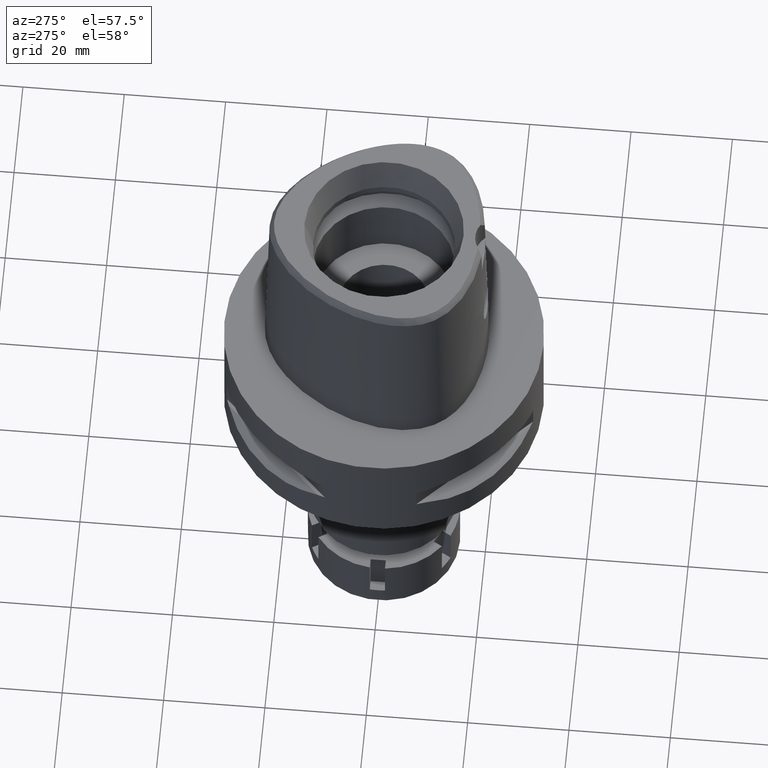
[diagram: clean part render]
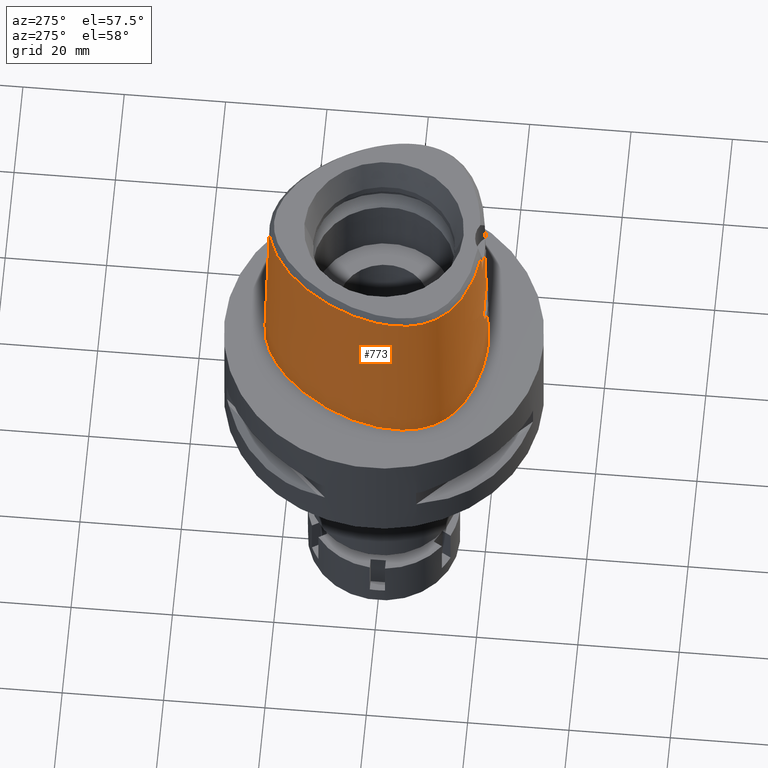
[diagram: same view with one face highlighted and labeled with its STEP entity id]
A machine part, auxiliary view. The second image highlights one B-rep face of the part: STEP entity #773.
In plain terms, the highlighted face is a freeform B-spline surface patch.
Its self-contained STEP definition (entity closure, byte-faithful):
#11 = CARTESIAN_POINT ( 'NONE',  ( -1.022365109425869667, -20.17471965582462801, 19.42121493659535503 ) ) ;
#21 = EDGE_CURVE ( 'NONE', #5096, #2215, #3666, .T. ) ;
#37 = CARTESIAN_POINT ( 'NONE',  ( -1.517161473151139583, -20.16080877568152019, 19.25511071981175348 ) ) ;
#38 = EDGE_CURVE ( 'NONE', #4726, #525, #5244, .T. ) ;
#125 = VERTEX_POINT ( 'NONE', #2881 ) ;
#173 = CARTESIAN_POINT ( 'NONE',  ( -4.047647783303075286, -20.04912830845453797, 15.64167056050822247 ) ) ;
#188 = CARTESIAN_POINT ( 'NONE',  ( 0.0000000000000000000, -20.18628283968999781, 19.55000000000000071 ) ) ;
#196 = CARTESIAN_POINT ( 'NONE',  ( -17.25769840665999766, 9.963736472051998305, 37.25232557796999799 ) ) ;
#199 = CARTESIAN_POINT ( 'NONE',  ( -3.836464923252963732, -20.10950437770303267, 14.19903046587717199 ) ) ;
#226 = CARTESIAN_POINT ( 'NONE',  ( -20.65879046315000167, -10.48283618578000009, 11.93048335503999979 ) ) ;
#228 = CARTESIAN_POINT ( 'NONE',  ( -3.088949651948550645, -20.08579362655097711, 18.13906926423142707 ) ) ;
#245 = ORIENTED_EDGE ( 'NONE', *, *, #4448, .T. ) ;
#254 = CARTESIAN_POINT ( 'NONE',  ( -21.31039815168000118, -4.105938498081999732, 37.25232557796999799 ) ) ;
#256 = CARTESIAN_POINT ( 'NONE',  ( -1.537537617581739013, -20.16012734688905184, 19.24679635489585294 ) ) ;
#278 = CARTESIAN_POINT ( 'NONE',  ( 6.589893037108998874E-11, 23.47499999998000320, 1.563934167354999746E-13 ) ) ;
#281 = CARTESIAN_POINT ( 'NONE',  ( -20.76670355095999909, 4.663413654650000240, -0.7304377564306999693 ) ) ;
#283 = CARTESIAN_POINT ( 'NONE',  ( -4.049380509949498830, -20.05052727726762996, 15.57772136793791695 ) ) ;
#303 = CARTESIAN_POINT ( 'NONE',  ( -18.12052898442000171, -13.74516022082999989, 24.59140446649999845 ) ) ;
#355 = CARTESIAN_POINT ( 'NONE',  ( -1.886862292332999846, -20.71358860104000144, -0.7304377564306999693 ) ) ;
#371 = CARTESIAN_POINT ( 'NONE',  ( -0.7901461696978930860, 22.56201478746269018, 36.52186244848001451 ) ) ;
#420 = CARTESIAN_POINT ( 'NONE',  ( -2.376843896520162591, 22.39422508473871432, 36.52186244848001451 ) ) ;
#459 = B_SPLINE_CURVE_WITH_KNOTS ( 'NONE', 3,
 ( #874, #2049, #3408, #1646, #2996, #4242, #2079, #5447, #984, #3924, #3329, #1211, #2469, #4342, #2891, #4981, #3819, #550, #2916, #1282, #420, #371, #5006 ),
 .UNSPECIFIED., .F., .F.,
 ( 4, 1, 1, 1, 1, 1, 1, 1, 1, 1, 1, 1, 1, 1, 1, 1, 1, 1, 1, 1, 4 ),
 ( 0.0000000000000000000, 0.03580973941716773801, 0.1234633994701237469, 0.1672902294965492032, 0.2111170595229746594, 0.2549438895495053647, 0.2768573045626129270, 0.2987707195758255718, 0.3206841345891434658, 0.3425975496022510280, 0.3864243796287815669, 0.4302512096551018295, 0.4740780396816324793, 0.5617316997344834473, 0.6493853597874393868, 0.7370390198402902993, 0.8246926798930360736, 0.8685195099195666124, 0.9123463399460025602, 0.9561731699724385081, 1.000000000000000000 ),
 .UNSPECIFIED. ) ;
#471 = EDGE_LOOP ( 'NONE', ( #3271, #1080, #3884, #3812, #4733, #245, #1954, #1796 ) ) ;
#525 = VERTEX_POINT ( 'NONE', #3289 ) ;
#550 = CARTESIAN_POINT ( 'NONE',  ( -10.15538788052530705, 18.47129535093771935, 36.52186244848001451 ) ) ;
#582 = CARTESIAN_POINT ( 'NONE',  ( -2.851861598615923032, -20.09934730900324240, 18.37566093960744595 ) ) ;
#613 = CARTESIAN_POINT ( 'NONE',  ( -4.036689213118804354, -20.04559770559082921, 15.83444366183588059 ) ) ;
#640 = CARTESIAN_POINT ( 'NONE',  ( -21.26836739854000058, -8.910752240484999476, 11.93048335503999979 ) ) ;
#642 = CARTESIAN_POINT ( 'NONE',  ( -3.772617383112289779, -20.12080038811392058, 14.02677193602148975 ) ) ;
#645 = CARTESIAN_POINT ( 'NONE',  ( -14.67337963994967964, -17.21410155503892625, 3.423926579000820258E-07 ) ) ;
#668 = CARTESIAN_POINT ( 'NONE',  ( -14.68244497214999988, -17.23001773197000119, -0.7304377564306999693 ) ) ;
#670 = CARTESIAN_POINT ( 'NONE',  ( -3.727468063551945487, -20.04882030316939634, 17.08383202250638178 ) ) ;
#697 = CARTESIAN_POINT ( 'NONE',  ( -5.105252916821000575, 22.54305024418999892, -0.7304377564306999693 ) ) ;
#700 = CARTESIAN_POINT ( 'NONE',  ( -3.701411870351474231, -20.05012129341275795, 17.14416660342578780 ) ) ;
#704 = CARTESIAN_POINT ( 'NONE',  ( -18.56841064519229789, -14.16937987690424983, 3.423926579000820258E-07 ) ) ;
#725 = CARTESIAN_POINT ( 'NONE',  ( -18.35112152585000089, -13.96357034382999984, 11.93048335503999979 ) ) ;
#747 = CARTESIAN_POINT ( 'NONE',  ( -6.232237572390999958, -19.68961173059000203, 24.59140446649999845 ) ) ;
#773 = ADVANCED_FACE ( 'NONE', ( #3537 ), #5024, .T. ) ;
#831 = CARTESIAN_POINT ( 'NONE',  ( -1.680950213402043758, -20.33952377252902011, 11.81519902098117036 ) ) ;
#856 = CARTESIAN_POINT ( 'NONE',  ( 0.6718639820156999676, -20.05378883490000064, 24.59140446649999845 ) ) ;
#874 = CARTESIAN_POINT ( 'NONE',  ( -3.637738201363999835, -19.56971413236999879, 36.52186244848000030 ) ) ;
#900 = CARTESIAN_POINT ( 'NONE',  ( -1.661817726879000115E-12, -20.38876923348000147, 11.44999999999999929 ) ) ;
#970 = VECTOR ( 'NONE', #4516, 1000.000000000000114 ) ;
#984 = CARTESIAN_POINT ( 'NONE',  ( -19.55745547456124456, -11.29150218116027027, 36.52186244848001451 ) ) ;
#995 = CARTESIAN_POINT ( 'NONE',  ( -3.704239276368590961, -19.64128040965313460, 33.37395414949332917 ) ) ;
#1010 = CARTESIAN_POINT ( 'NONE',  ( -3.762866558989816035, -20.12247609577278595, 14.00219724669837440 ) ) ;
#1040 = CARTESIAN_POINT ( 'NONE',  ( 0.6850314066075999797, 22.83959042086999958, 24.59140446649999845 ) ) ;
#1043 = CARTESIAN_POINT ( 'NONE',  ( -2.842819473918802409, -20.09986155660018881, 18.38460012063233862 ) ) ;
#1045 = CARTESIAN_POINT ( 'NONE',  ( -22.05732873470831379, -6.847636717526464523, 3.423926579000820258E-07 ) ) ;
#1056 = CARTESIAN_POINT ( 'NONE',  ( -3.637738201363999835, -19.56971413236999879, 36.52186244848000030 ) ) ;
#1069 = CARTESIAN_POINT ( 'NONE',  ( -21.62788395688999898, -4.104079498733999465, 24.59140446649999845 ) ) ;
#1071 = CARTESIAN_POINT ( 'NONE',  ( -3.925545876650333721, -20.09219437664471641, 14.49437688004419655 ) ) ;
#1075 = CARTESIAN_POINT ( 'NONE',  ( -2.564517725197732911, 23.29328124157386171, 3.423926579000820258E-07 ) ) ;
#1080 = ORIENTED_EDGE ( 'NONE', *, *, #4521, .F. ) ;
#1097 = CARTESIAN_POINT ( 'NONE',  ( -21.36961496507000291, -0.3886497983659999433, 24.59140446649999845 ) ) ;
#1099 = CARTESIAN_POINT ( 'NONE',  ( -2.829262209631099534, -20.10063058960543358, 18.39793988736884600 ) ) ;
#1121 = CARTESIAN_POINT ( 'NONE',  ( -10.34823234085999921, 18.70095494701000050, 24.59140446649999845 ) ) ;
#1123 = CARTESIAN_POINT ( 'NONE',  ( -2.886359020766678718, -20.23990313644716821, 12.65895641127606730 ) ) ;
#1128 = CARTESIAN_POINT ( 'NONE',  ( -6.341471017690654577, -20.29812499153080907, 3.423926579000820258E-07 ) ) ;
#1147 = CARTESIAN_POINT ( 'NONE',  ( -21.13154870326999912, -6.714587051255999306, 37.25232557796999799 ) ) ;
#1167 = CARTESIAN_POINT ( 'NONE',  ( -7.259695406138000351, 20.78233559289999732, 24.59140446649999845 ) ) ;
#1211 = CARTESIAN_POINT ( 'NONE',  ( -21.14970188363446724, -6.717195958887569596, 36.52186244848001451 ) ) ;
#1221 = CARTESIAN_POINT ( 'NONE',  ( -1.641547885477804503, -20.34184452622899641, 11.79740194305472833 ) ) ;
#1256 = DIRECTION ( 'NONE',  ( -1.018537051600977918E-12, -0.02499051295360945474, -0.9996876883618780463 ) ) ;
#1282 = CARTESIAN_POINT ( 'NONE',  ( -4.757642277159164657, 21.67478330407714537, 36.52186244848001451 ) ) ;
#1354 = CARTESIAN_POINT ( 'NONE',  ( 0.7234356452484000943, 23.47140592861000030, -0.7304377564306999693 ) ) ;
#1360 = VERTEX_POINT ( 'NONE', #900 ) ;
#1388 = CARTESIAN_POINT ( 'NONE',  ( -0.5985508169113999966, 23.20171274679999840, 11.93048335503999979 ) ) ;
#1416 = CARTESIAN_POINT ( 'NONE',  ( -0.5657070251571000297, 22.56734893796999941, 37.25232557796999799 ) ) ;
#1418 = CARTESIAN_POINT ( 'NONE',  ( -3.624916899577419471, -20.05423358433256453, 17.30718645647710829 ) ) ;
#1443 = CARTESIAN_POINT ( 'NONE',  ( -2.797674746443008953, -20.10240863121991239, 18.42858565186585551 ) ) ;
#1447 = CARTESIAN_POINT ( 'NONE',  ( -16.95889172062087624, -15.67838866511357665, 3.423926579000820258E-07 ) ) ;
#1475 = CARTESIAN_POINT ( 'NONE',  ( -7.420053123634000158, 21.05635742872999927, 11.93048335503999979 ) ) ;
#1478 = CARTESIAN_POINT ( 'NONE',  ( -2.575331093196957521, -20.11438870429707748, 18.62711872177947825 ) ) ;
#1479 = CARTESIAN_POINT ( 'NONE',  ( -1.251533273950117264, -19.88005341379780333, 31.80000012753028571 ) ) ;
#1480 = CARTESIAN_POINT ( 'NONE',  ( -14.21104791870999939, -16.40237691951999821, 37.25232557796999799 ) ) ;
#1506 = CARTESIAN_POINT ( 'NONE',  ( -16.57726031862999960, -15.19304459197000057, 24.59140446649999845 ) ) ;
#1509 = CARTESIAN_POINT ( 'NONE',  ( -3.551086205153987319, -20.15710110468318561, 13.53005022717044170 ) ) ;
#1527 = CARTESIAN_POINT ( 'NONE',  ( -20.94844326042000304, -10.61175397077000149, -0.7304377564306999693 ) ) ;
#1529 = CARTESIAN_POINT ( 'NONE',  ( -2.919908442626371503, -20.23620720269465423, 12.69338033339324490 ) ) ;
#1532 = CARTESIAN_POINT ( 'NONE',  ( -1.332771036174000052E-11, -20.67499999999999716, 1.592799965995999763E-13 ) ) ;
#1554 = CARTESIAN_POINT ( 'NONE',  ( -2.438150593325000060, 22.68791634483000053, 24.59140446649999845 ) ) ;
#1580 = CARTESIAN_POINT ( 'NONE',  ( -16.77374381545999782, -15.44292471231999997, 11.93048335503999979 ) ) ;
#1607 = CARTESIAN_POINT ( 'NONE',  ( 0.6657744303267999486, -19.73734247644999940, 37.25232557796999799 ) ) ;
#1626 = CARTESIAN_POINT ( 'NONE',  ( -10.91263703581000044, -18.01320789004000034, 37.25232557796999799 ) ) ;
#1646 = CARTESIAN_POINT ( 'NONE',  ( -10.91891098965037621, -18.03046406390354761, 36.52186244848001451 ) ) ;
#1655 = CARTESIAN_POINT ( 'NONE',  ( -1.853278688517000061, -20.08023918878999936, 24.59140446649999845 ) ) ;
#1670 = CARTESIAN_POINT ( 'NONE',  ( -1.661817726879000115E-12, -20.38876923348000147, 11.44999999999999929 ) ) ;
#1717 = CARTESIAN_POINT ( 'NONE',  ( -1.531425900854439970, -20.16033262243966817, 19.24930241983937407 ) ) ;
#1736 = EDGE_CURVE ( 'NONE', #2934, #5096, #2778, .T. ) ;
#1796 = ORIENTED_EDGE ( 'NONE', *, *, #21, .T. ) ;
#1812 = B_SPLINE_CURVE_WITH_KNOTS ( 'NONE', 3,
 ( #2373, #4063, #1958, #188 ),
 .UNSPECIFIED., .F., .F.,
 ( 4, 4 ),
 ( 0.0000000000000000000, 1.000000000000000000 ),
 .UNSPECIFIED. ) ;
#1832 = CARTESIAN_POINT ( 'NONE',  ( -10.74572890506151701, 19.17433593090900601, 3.423926579000820258E-07 ) ) ;
#1844 = CARTESIAN_POINT ( 'NONE',  ( -3.671249123513567802, -19.60525173594972514, 34.94790829898666829 ) ) ;
#1857 = CARTESIAN_POINT ( 'NONE',  ( -2.902615160576620390, -20.23811536797220256, 12.67557197027373306 ) ) ;
#1879 = CARTESIAN_POINT ( 'NONE',  ( -16.38077682180000139, -14.94316447163000028, 37.25232557796999799 ) ) ;
#1882 = CARTESIAN_POINT ( 'NONE',  ( -3.268894153573172812, -20.07506707268926860, 17.90551119206276098 ) ) ;
#1908 = CARTESIAN_POINT ( 'NONE',  ( -10.75753573939999974, 19.18839675899999975, -0.7304377564306999693 ) ) ;
#1912 = CARTESIAN_POINT ( 'NONE',  ( -3.734192364384906870, -20.04849293615281169, 17.06792249995446298 ) ) ;
#1939 = CARTESIAN_POINT ( 'NONE',  ( -20.96392240260000150, -8.820258285234999107, 24.59140446649999845 ) ) ;
#1941 = CARTESIAN_POINT ( 'NONE',  ( -3.665886060566160953, -20.13895798169131268, 13.76422588867239583 ) ) ;
#1944 = CARTESIAN_POINT ( 'NONE',  ( -11.23259756433766299, -18.89324217941165429, 3.423926579000820258E-07 ) ) ;
#1954 = ORIENTED_EDGE ( 'NONE', *, *, #1736, .T. ) ;
#1958 = CARTESIAN_POINT ( 'NONE',  ( 6.839045236560325519E-09, -20.08420636276244409, 23.63333344114118972 ) ) ;
#1963 = CARTESIAN_POINT ( 'NONE',  ( -18.08416038484999788, 10.44089487309999953, -0.7304377564306999693 ) ) ;
#1989 = CARTESIAN_POINT ( 'NONE',  ( -21.57281239447000232, -9.001246195735999933, -0.7304377564306999693 ) ) ;
#1991 = CARTESIAN_POINT ( 'NONE',  ( -0.5057976960627408314, -20.38876923348000503, 11.45000000000000284 ) ) ;
#2016 = CARTESIAN_POINT ( 'NONE',  ( -2.088625923266695938, -20.31247304268963561, 12.02751230640195068 ) ) ;
#2034 = CARTESIAN_POINT ( 'NONE',  ( 0.6779535337046999066, -20.37023519333999744, 11.93048335503999979 ) ) ;
#2049 = CARTESIAN_POINT ( 'NONE',  ( -4.467522189394907528, -19.48130287050509679, 36.52186244848001451 ) ) ;
#2063 = CARTESIAN_POINT ( 'NONE',  ( -1.559136308676829508, -20.34646479193384394, 11.76213038228687324 ) ) ;
#2079 = CARTESIAN_POINT ( 'NONE',  ( -17.90324032096905782, -13.53935111955300385, 36.52186244848001451 ) ) ;
#2092 = CARTESIAN_POINT ( 'NONE',  ( 2.041042029990999821E-08, -19.88004246002000031, 31.80000004972000127 ) ) ;
#2105 = CARTESIAN_POINT ( 'NONE',  ( -0.5021966653207772247, -20.18408032847754185, 19.52742625746185112 ) ) ;
#2115 = CARTESIAN_POINT ( 'NONE',  ( -14.36818026985999985, -16.67825719033000098, 24.59140446649999845 ) ) ;
#2130 = CARTESIAN_POINT ( 'NONE',  ( -1.488618218502011148, -20.16174978999348610, 19.26657080672656264 ) ) ;
#2204 = CARTESIAN_POINT ( 'NONE',  ( 0.7042335259280000370, 23.15549817473999994, 11.93048335503999979 ) ) ;
#2215 = VERTEX_POINT ( 'NONE', #3063 ) ;
#2231 = CARTESIAN_POINT ( 'NONE',  ( -0.5821289210343000287, 22.88453084239000290, 24.59140446649999845 ) ) ;
#2267 = CARTESIAN_POINT ( 'NONE',  ( -3.226623715367124667, -20.20025820885909695, 13.05137156917288088 ) ) ;
#2272 = CARTESIAN_POINT ( 'NONE',  ( -21.97832646939071211, -0.2810937514976091234, 3.423926579000820258E-07 ) ) ;
#2296 = CARTESIAN_POINT ( 'NONE',  ( -19.81622819092999777, -11.44090467918000087, 24.59140446649999845 ) ) ;
#2298 = CARTESIAN_POINT ( 'NONE',  ( -2.734721340074732776, -20.10589923952437275, 18.48797736885056864 ) ) ;
#2322 = CARTESIAN_POINT ( 'NONE',  ( -20.36546124680000247, -11.75800453303999937, -0.7304377564306999693 ) ) ;
#2325 = CARTESIAN_POINT ( 'NONE',  ( -3.756305601901991587, -20.12359913820115054, 13.98581835512330507 ) ) ;
#2353 = CARTESIAN_POINT ( 'NONE',  ( -14.52531262099999942, -16.95413746115000109, 11.93048335503999979 ) ) ;
#2356 = CARTESIAN_POINT ( 'NONE',  ( -3.285347387291322807, -20.19276818715913890, 13.13143756826547026 ) ) ;
#2360 = CARTESIAN_POINT ( 'NONE',  ( -3.736722311398999796, -19.67781602443999844, 31.80000000000000071 ) ) ;
#2373 = CARTESIAN_POINT ( 'NONE',  ( 2.041042029990999821E-08, -19.88004246002000031, 31.80000004972000127 ) ) ;
#2380 = CARTESIAN_POINT ( 'NONE',  ( -7.580410841129999966, 21.33037926457000211, -0.7304377564306999693 ) ) ;
#2382 = CARTESIAN_POINT ( 'NONE',  ( -2.426743820771495308, -20.28591317198323907, 12.24645876828439128 ) ) ;
#2387 = CARTESIAN_POINT ( 'NONE',  ( -1.479175875384000228E-11, 22.56201468012000078, 36.52186680743999858 ) ) ;
#2404 = CARTESIAN_POINT ( 'NONE',  ( -21.68301099146000155, -0.3332744071281000253, 11.93048335503999979 ) ) ;
#2455 = CARTESIAN_POINT ( 'NONE',  ( -11.02138179159999964, -18.31230451401999915, 24.59140446649999845 ) ) ;
#2469 = CARTESIAN_POINT ( 'NONE',  ( -21.32871527669804124, -4.105831244394096302, 36.52186244848001451 ) ) ;
#2482 = CARTESIAN_POINT ( 'NONE',  ( -1.563940438915660813, -20.34620099682664929, 11.76414146604226296 ) ) ;
#2553 = EDGE_CURVE ( 'NONE', #4726, #125, #1812, .T. ) ;
#2677 = CARTESIAN_POINT ( 'NONE',  ( -2.503210899748999907, 22.99958936531000120, 11.93048335503999979 ) ) ;
#2679 = CARTESIAN_POINT ( 'NONE',  ( -3.921186309756174992, -20.04104758680924903, 16.54728026705498678 ) ) ;
#2709 = CARTESIAN_POINT ( 'NONE',  ( 0.4696382035062000027, 23.16972802499999773, 11.93048335503999979 ) ) ;
#2712 = CARTESIAN_POINT ( 'NONE',  ( -3.998378643601445237, -20.04197879964153373, 16.15800283493870282 ) ) ;
#2744 = CARTESIAN_POINT ( 'NONE',  ( -21.76083709643999953, -6.805026040925000075, 11.93048335503999979 ) ) ;
#2746 = CARTESIAN_POINT ( 'NONE',  ( -2.304147840767882371, -20.12795125930878370, 18.83493901802697579 ) ) ;
#2749 = CARTESIAN_POINT ( 'NONE',  ( -20.93173251428282455, -10.60431640276500254, 3.423926579000820258E-07 ) ) ;
#2773 = CARTESIAN_POINT ( 'NONE',  ( -21.05621893868000072, -0.4440251896040000035, 37.25232557796999799 ) ) ;
#2775 = CARTESIAN_POINT ( 'NONE',  ( -4.043906065102822467, -20.04716311595002054, 15.73779593221317441 ) ) ;
#2777 = CARTESIAN_POINT ( 'NONE',  ( -19.64947365169954097, -12.82525390120522601, 3.423926579000820258E-07 ) ) ;
#2778 = LINE ( 'NONE', #2387, #970 ) ;
#2799 = CARTESIAN_POINT ( 'NONE',  ( -10.14358064159000072, 18.45723404101000042, 37.25232557796999799 ) ) ;
#2803 = CARTESIAN_POINT ( 'NONE',  ( -2.657721068647815432, -20.26492706695575663, 12.42779912980884838 ) ) ;
#2826 = CARTESIAN_POINT ( 'NONE',  ( -19.66427014782000171, -12.83600704786000080, -0.7304377564306999693 ) ) ;
#2847 = CARTESIAN_POINT ( 'NONE',  ( -21.99640701784999663, -0.2778990158902000518, -0.7304377564306999693 ) ) ;
#2850 = CARTESIAN_POINT ( 'NONE',  ( -1.977220963953215449, -20.32050645178594195, 11.96331718206727857 ) ) ;
#2876 = CARTESIAN_POINT ( 'NONE',  ( -1.596139597499231844, -20.34441756046290095, 11.77774490583834677 ) ) ;
#2881 = CARTESIAN_POINT ( 'NONE',  ( 0.0000000000000000000, -20.18628283968999781, 19.55000000000000071 ) ) ;
#2891 = CARTESIAN_POINT ( 'NONE',  ( -19.88562090098628587, 4.345879983792285906, 36.52186244848001451 ) ) ;
#2916 = CARTESIAN_POINT ( 'NONE',  ( -7.108589416785683568, 20.52412325828927919, 36.52186244848001451 ) ) ;
#2934 = VERTEX_POINT ( 'NONE', #3524 ) ;
#2947 = CARTESIAN_POINT ( 'NONE',  ( -6.288476574714000122, -20.00290569107999872, 11.93048335503999979 ) ) ;
#2969 = CARTESIAN_POINT ( 'NONE',  ( -1.317029288839157042, -20.16707969505642950, 19.33097695501850311 ) ) ;
#2977 = CARTESIAN_POINT ( 'NONE',  ( -6.175998570066999704, -19.37631777009999823, 37.25232557796999799 ) ) ;
#2996 = CARTESIAN_POINT ( 'NONE',  ( -14.22011356156129480, -16.41829364186637008, 36.52186244848001451 ) ) ;
#3063 = CARTESIAN_POINT ( 'NONE',  ( -1.332771036174000052E-11, -20.67499999999999716, 1.592799965995999763E-13 ) ) ;
#3074 = CARTESIAN_POINT ( 'NONE',  ( 0.6658292872871000023, 22.52368266699999921, 37.25232557796999799 ) ) ;
#3103 = CARTESIAN_POINT ( 'NONE',  ( -2.568271206174000287, 23.31126238579999921, -0.7304377564306999693 ) ) ;
#3106 = CARTESIAN_POINT ( 'NONE',  ( -3.867986333240079677, -20.10354544969807833, 14.29756339121890463 ) ) ;
#3109 = CARTESIAN_POINT ( 'NONE',  ( -2.113823672555657396, -20.67499999144004263, 3.423926579000820258E-07 ) ) ;
#3131 = CARTESIAN_POINT ( 'NONE',  ( -2.506020785570270082, -20.11792900002019024, 18.68268184143629185 ) ) ;
#3134 = CARTESIAN_POINT ( 'NONE',  ( -21.55524825185623428, -8.996025388178114923, 3.423926579000820258E-07 ) ) ;
#3163 = CARTESIAN_POINT ( 'NONE',  ( -20.46725042020999652, 4.555493640721999249, 11.93048335503999979 ) ) ;
#3165 = CARTESIAN_POINT ( 'NONE',  ( -3.843227255198573111, -20.04326967351011035, 16.80669441001862197 ) ) ;
#3189 = CARTESIAN_POINT ( 'NONE',  ( -4.868968399512999312, 21.95285532081000213, 24.59140446649999845 ) ) ;
#3191 = CARTESIAN_POINT ( 'NONE',  ( -3.302917147192935943, -20.19049600744114414, 13.15592041073554874 ) ) ;
#3211 = CARTESIAN_POINT ( 'NONE',  ( -4.750826140859000013, 21.65775785913000107, 37.25232557796999799 ) ) ;
#3213 = CARTESIAN_POINT ( 'NONE',  ( -2.891050031072853521, -20.23938800645135316, 12.66373517044929820 ) ) ;
#3216 = CARTESIAN_POINT ( 'NONE',  ( 2.041042029990999821E-08, -19.88004246002000031, 31.80000004972000127 ) ) ;
#3237 = CARTESIAN_POINT ( 'NONE',  ( -19.86834415871000203, 4.339653612865999932, 37.25232557796999799 ) ) ;
#3261 = CARTESIAN_POINT ( 'NONE',  ( -18.89485271022000035, -12.27684368389999925, 37.25232557796999799 ) ) ;
#3271 = ORIENTED_EDGE ( 'NONE', *, *, #4517, .F. ) ;
#3285 = CARTESIAN_POINT ( 'NONE',  ( -1.760349299969755643, -20.33472853741549713, 11.85211323616617562 ) ) ;
#3289 = CARTESIAN_POINT ( 'NONE',  ( -3.736722311398999796, -19.67781602443999844, 31.80000000000000071 ) ) ;
#3310 = CARTESIAN_POINT ( 'NONE',  ( -1.870070490425000065, -20.39691389491999729, 11.93048335503999979 ) ) ;
#3329 = CARTESIAN_POINT ( 'NONE',  ( -20.67704215116270561, -8.734985316449559889, 36.52186244848001451 ) ) ;
#3340 = CARTESIAN_POINT ( 'NONE',  ( -1.836486886609000058, -19.76356448266999877, 37.25232557796999799 ) ) ;
#3408 = CARTESIAN_POINT ( 'NONE',  ( -7.300578999876100816, -19.07170748891604717, 36.52186244848001451 ) ) ;
#3482 = CARTESIAN_POINT ( 'NONE',  ( 0.4569144511776999651, 22.85341786595000002, 24.59140446649999845 ) ) ;
#3514 = CARTESIAN_POINT ( 'NONE',  ( -3.956603479663597600, -20.08538270521787084, 14.62524140996041488 ) ) ;
#3517 = CARTESIAN_POINT ( 'NONE',  ( -20.34961797814618478, -11.74885741758325786, 3.423926579000820258E-07 ) ) ;
#3524 = CARTESIAN_POINT ( 'NONE',  ( -1.479175875384000228E-11, 22.56201468012000078, 36.52186680743999858 ) ) ;
#3537 = FACE_OUTER_BOUND ( 'NONE', #471, .T. ) ;
#3539 = CARTESIAN_POINT ( 'NONE',  ( -2.959876274847224931, -20.23176036413519796, 12.73530298307193220 ) ) ;
#3564 = CARTESIAN_POINT ( 'NONE',  ( -13.69241966182999981, 15.03666380766000010, 37.25232557796999799 ) ) ;
#3566 = CARTESIAN_POINT ( 'NONE',  ( -4.050821549878450334, -20.05812574356221134, 15.26903924937934320 ) ) ;
#3595 = CARTESIAN_POINT ( 'NONE',  ( -19.40779766861999889, -12.64961925987999969, 11.93048335503999979 ) ) ;
#3597 = CARTESIAN_POINT ( 'NONE',  ( -3.752271680815396415, -20.12428644457952132, 13.97585918820294992 ) ) ;
#3600 = CARTESIAN_POINT ( 'NONE',  ( 6.589893037108998874E-11, 23.47499999998000320, 1.563934167354999746E-13 ) ) ;
#3622 = CARTESIAN_POINT ( 'NONE',  ( -17.80867305879000284, 10.28184207274999906, 11.93048335503999979 ) ) ;
#3625 = CARTESIAN_POINT ( 'NONE',  ( -1.541611730320501694, -20.15999022766073168, 19.24512191036260589 ) ) ;
#3647 = CARTESIAN_POINT ( 'NONE',  ( -20.16779728945999750, 4.447573626794000035, 24.59140446649999845 ) ) ;
#3666 = B_SPLINE_CURVE_WITH_KNOTS ( 'NONE', 3,
 ( #3600, #4869, #1075, #4462, #4049, #1832, #5222, #4810, #4375, #2272, #3961, #1045, #3134, #2749, #3517, #2777, #704, #1447, #645, #1944, #1128, #3109, #1532 ),
 .UNSPECIFIED., .F., .F.,
 ( 4, 1, 1, 1, 1, 1, 1, 1, 1, 1, 1, 1, 1, 1, 1, 1, 1, 1, 1, 1, 4 ),
 ( 0.0000000000000000000, 0.04166666666767999960, 0.08333333333429000789, 0.1250000000009000023, 0.1666666666676000219, 0.2500000000006999956, 0.3333333333339000282, 0.4166666666672000363, 0.5000000000004000134, 0.5416666666671000607, 0.5833333333336000459, 0.6250000000002999823, 0.6458333333335000148, 0.6666666666668999985, 0.6875000000001999512, 0.7083333333333999837, 0.7500000000001000311, 0.7916666666667000474, 0.8333333333333000637, 0.9166666666666000163, 1.000000000000000000 ),
 .UNSPECIFIED. ) ;
#3677 = CARTESIAN_POINT ( 'NONE',  ( -20.07948486863000070, -10.22500061580999997, 37.25232557796999799 ) ) ;
#3704 = B_SPLINE_CURVE_WITH_KNOTS ( 'NONE', 3,
 ( #4621, #4215, #2105, #3796, #11, #5053, #2969, #4652, #2130, #37, #1717, #256, #3625, #4012, #5219, #4806, #4488, #2746, #3131, #1478, #4839, #2298, #1443, #1099, #1043, #582, #5195, #228, #1882, #4457, #4073, #1418, #3957, #5279, #700, #4890, #670, #4430, #1912, #3165, #2679, #2712, #4401, #613, #2775, #173, #283, #3986, #3566, #5247, #3514, #1071, #3106, #199, #4865, #642, #1010, #2325, #3597, #1941, #1509, #4371, #5300, #3191, #2356, #2267, #4779, #4044, #3539, #1529, #1857, #3213, #1123, #2803, #2382, #2016, #2850, #3732, #3285, #831, #1221, #2876, #4564, #2482, #2063, #5323, #1991, #5380 ),
 .UNSPECIFIED., .F., .F.,
 ( 4, 2, 2, 1, 1, 1, 1, 1, 2, 2, 2, 2, 2, 1, 1, 1, 2, 2, 2, 2, 2, 1, 1, 2, 2, 2, 2, 1, 2, 2, 2, 2, 1, 1, 1, 2, 2, 2, 2, 2, 1, 1, 1, 1, 2, 2, 2, 2, 2, 1, 1, 2, 2, 4 ),
 ( 0.0000000000000000000, 0.06250000000001719458, 0.09375000000002578493, 0.1093750000000301009, 0.1171875000000320993, 0.1210937500000331124, 0.1230468750000335704, 0.1240234375000336814, 0.1245117187500337508, 0.1250000000000338340, 0.1875000000000195399, 0.2187500000000124067, 0.2343750000000086042, 0.2421875000000066891, 0.2460937500000056899, 0.2480468750000052180, 0.2490234375000051625, 0.2500000000000051070, 0.3124999999999995559, 0.3437499999999967248, 0.3593749999999948375, 0.3671874999999943934, 0.3710937499999946709, 0.3730468749999948375, 0.3749999999999949485, 0.4375000000000102696, 0.4687500000000179301, 0.4843750000000213718, 0.4921875000000234257, 0.5000000000000250910, 0.5625000000000383027, 0.5937500000000448530, 0.6093750000000479616, 0.6171875000000492939, 0.6210937500000498490, 0.6230468750000500711, 0.6250000000000502931, 0.6875000000000467404, 0.6953125000000461853, 0.7031250000000456302, 0.7187500000000446310, 0.7343750000000436318, 0.7421875000000431877, 0.7460937500000428546, 0.7480468750000426326, 0.7500000000000422995, 0.8125000000000300870, 0.8437500000000240918, 0.8593750000000210942, 0.8671875000000195399, 0.8710937500000188738, 0.8730468750000184297, 0.8750000000000180966, 1.000000000000000000 ),
 .UNSPECIFIED. ) ;
#3706 = CARTESIAN_POINT ( 'NONE',  ( 0.4479792485519000222, -20.05810146319999987, 24.59140446649999845 ) ) ;
#3732 = CARTESIAN_POINT ( 'NONE',  ( -1.814075761521567465, -20.33132674372171067, 11.87848289315111572 ) ) ;
#3796 = CARTESIAN_POINT ( 'NONE',  ( -0.8915959579256450551, -20.17747279484018463, 19.45284993204887414 ) ) ;
#3812 = ORIENTED_EDGE ( 'NONE', *, *, #38, .T. ) ;
#3819 = CARTESIAN_POINT ( 'NONE',  ( -13.70645028110877384, 15.04851272301026732, 36.52186244848001451 ) ) ;
#3884 = ORIENTED_EDGE ( 'NONE', *, *, #2553, .F. ) ;
#3924 = CARTESIAN_POINT ( 'NONE',  ( -20.09619618741078284, -10.23243843868572078, 36.52186244848001451 ) ) ;
#3957 = CARTESIAN_POINT ( 'NONE',  ( -3.649895455435462566, -20.05285162608158700, 17.25607357538641295 ) ) ;
#3961 = CARTESIAN_POINT ( 'NONE',  ( -22.24453906996204111, -4.100468750049713229, 3.423926579000820258E-07 ) ) ;
#3974 = VERTEX_POINT ( 'NONE', #4684 ) ;
#3984 = CARTESIAN_POINT ( 'NONE',  ( -18.58171406728000008, -14.18198046682999980, -0.7304377564306999693 ) ) ;
#3986 = CARTESIAN_POINT ( 'NONE',  ( -4.049870150499777388, -20.05130122720003527, 15.54460083363588829 ) ) ;
#4010 = CARTESIAN_POINT ( 'NONE',  ( -4.987110658167000388, 22.24795278250000052, 11.93048335503999979 ) ) ;
#4012 = CARTESIAN_POINT ( 'NONE',  ( -1.544810291204848252, -20.15988227518972309, 19.24380315459364610 ) ) ;
#4013 = VECTOR ( 'NONE', #1256, 1000.000000000000114 ) ;
#4042 = CARTESIAN_POINT ( 'NONE',  ( -21.94536976210000034, -4.102220499386000085, 11.93048335503999979 ) ) ;
#4044 = CARTESIAN_POINT ( 'NONE',  ( -3.038261303643816635, -20.22288887536902280, 12.82060858333816533 ) ) ;
#4049 = CARTESIAN_POINT ( 'NONE',  ( -7.571159430014793301, 21.31457030509188044, 3.423926579000820258E-07 ) ) ;
#4063 = CARTESIAN_POINT ( 'NONE',  ( 6.819087968296265323E-09, -19.98212988583368599, 27.71666688228198439 ) ) ;
#4070 = CARTESIAN_POINT ( 'NONE',  ( -17.53318573273000069, 10.12278927240000037, 24.59140446649999845 ) ) ;
#4073 = CARTESIAN_POINT ( 'NONE',  ( -3.544073556735397812, -20.05881268582364285, 17.46362529361225668 ) ) ;
#4090 = CARTESIAN_POINT ( 'NONE',  ( -14.42198652149999916, 15.65278600377000018, -0.7304377564306999693 ) ) ;
#4093 = EDGE_CURVE ( 'NONE', #3974, #525, #4948, .T. ) ;
#4146 = CARTESIAN_POINT ( 'NONE',  ( 0.4439216893103000161, -19.74161835143999966, 37.25232557796999799 ) ) ;
#4168 = CARTESIAN_POINT ( 'NONE',  ( 0.4520368077935999485, -20.37458457496000008, 11.93048335503999979 ) ) ;
#4184 = LINE ( 'NONE', #1670, #4013 ) ;
#4198 = CARTESIAN_POINT ( 'NONE',  ( -11.23887130319000072, -18.91049776196000209, -0.7304377564306999693 ) ) ;
#4215 = CARTESIAN_POINT ( 'NONE',  ( -0.2465900941925037171, -20.18628283969001203, 19.54999999999999005 ) ) ;
#4242 = CARTESIAN_POINT ( 'NONE',  ( -16.39211280191740272, -14.95758113318992955, 36.52186244848001451 ) ) ;
#4342 = CARTESIAN_POINT ( 'NONE',  ( -21.07430010672385734, -0.4408303445193247905, 36.52186244848001451 ) ) ;
#4371 = CARTESIAN_POINT ( 'NONE',  ( -3.367828864787742127, -20.18191781820201669, 13.25019773596632611 ) ) ;
#4375 = CARTESIAN_POINT ( 'NONE',  ( -20.74942740070316205, 4.657187497081801020, 3.423926579000820258E-07 ) ) ;
#4399 = CARTESIAN_POINT ( 'NONE',  ( 0.4441906988491999830, 22.53710770688999787, 37.25232557796999799 ) ) ;
#4401 = CARTESIAN_POINT ( 'NONE',  ( -4.017505374297177134, -20.04299992773290029, 16.02820453661527367 ) ) ;
#4428 = CARTESIAN_POINT ( 'NONE',  ( -21.44619289986000155, -6.759806546090000090, 24.59140446649999845 ) ) ;
#4430 = CARTESIAN_POINT ( 'NONE',  ( -3.732520217321461775, -20.04857409473413909, 17.07188894887739039 ) ) ;
#4448 = EDGE_CURVE ( 'NONE', #3974, #2934, #459, .T. ) ;
#4455 = CARTESIAN_POINT ( 'NONE',  ( -17.88993644299999985, -13.52675009782999993, 37.25232557796999799 ) ) ;
#4457 = CARTESIAN_POINT ( 'NONE',  ( -3.482299042798025823, -20.06244305580190357, 17.57207785740038375 ) ) ;
#4462 = CARTESIAN_POINT ( 'NONE',  ( -5.098437014088320396, 22.52602538265056964, 3.423926579000820258E-07 ) ) ;
#4485 = CARTESIAN_POINT ( 'NONE',  ( -2.373090286901000212, 22.37624332433999896, 37.25232557796999799 ) ) ;
#4488 = CARTESIAN_POINT ( 'NONE',  ( -2.177756291303943659, -20.13383459499351247, 18.91722893390487314 ) ) ;
#4492 = CARTESIAN_POINT ( 'NONE',  ( -2.503154198992934010, -19.81241979316093804, 31.80000012753028571 ) ) ;
#4511 = CARTESIAN_POINT ( 'NONE',  ( -19.54161166299000030, -11.28235475224999895, 37.25232557796999799 ) ) ;
#4516 = DIRECTION ( 'NONE',  ( 2.208690177558959614E-12, 0.02499051290944955331, -0.9996876883629820520 ) ) ;
#4517 = EDGE_CURVE ( 'NONE', #1360, #2215, #4184, .T. ) ;
#4521 = EDGE_CURVE ( 'NONE', #125, #1360, #3704, .T. ) ;
#4534 = CARTESIAN_POINT ( 'NONE',  ( -20.09084471885999790, -11.59945460610999923, 11.93048335503999979 ) ) ;
#4564 = CARTESIAN_POINT ( 'NONE',  ( -1.576803252231337549, -20.34549146547399801, 11.76955228076129956 ) ) ;
#4608 = CARTESIAN_POINT ( 'NONE',  ( -11.13012654739000062, -18.61140113799000062, 11.93048335503999979 ) ) ;
#4621 = CARTESIAN_POINT ( 'NONE',  ( 0.0000000000000000000, -20.18628283968999781, 19.55000000000000071 ) ) ;
#4637 = CARTESIAN_POINT ( 'NONE',  ( 0.6840430853936000366, -20.68668155178999868, -0.7304377564306999693 ) ) ;
#4652 = CARTESIAN_POINT ( 'NONE',  ( -1.431479060983974261, -20.16358664993042993, 19.28886676729727156 ) ) ;
#4684 = CARTESIAN_POINT ( 'NONE',  ( -3.637738201363999835, -19.56971413236999879, 36.52186244848000030 ) ) ;
#4726 = VERTEX_POINT ( 'NONE', #2092 ) ;
#4733 = ORIENTED_EDGE ( 'NONE', *, *, #4093, .F. ) ;
#4777 = CARTESIAN_POINT ( 'NONE',  ( -0.6149727127885998845, 23.51889465121000100, -0.7304377564306999693 ) ) ;
#4779 = CARTESIAN_POINT ( 'NONE',  ( -3.145707688435726457, -20.21027871528220743, 12.94653690347513297 ) ) ;
#4806 = CARTESIAN_POINT ( 'NONE',  ( -1.835538510707902526, -20.14909009052461641, 19.11988985741698954 ) ) ;
#4810 = CARTESIAN_POINT ( 'NONE',  ( -18.06826687781953922, 10.43171874570158231, 3.423926579000820258E-07 ) ) ;
#4837 = CARTESIAN_POINT ( 'NONE',  ( -22.26285556731000170, -4.100361500036999729, -0.7304377564306999693 ) ) ;
#4839 = CARTESIAN_POINT ( 'NONE',  ( -2.681265293295600927, -20.10877894677201283, 18.53570286126477740 ) ) ;
#4863 = CARTESIAN_POINT ( 'NONE',  ( -10.55288404012999948, 18.94467585299999968, 11.93048335503999979 ) ) ;
#4865 = CARTESIAN_POINT ( 'NONE',  ( -3.794737112325460959, -20.11695239546245872, 14.08415227051123075 ) ) ;
#4869 = CARTESIAN_POINT ( 'NONE',  ( -0.8548392416904486701, 23.47499999144377369, 3.423926579000819729E-07 ) ) ;
#4887 = CARTESIAN_POINT ( 'NONE',  ( -7.099337688642999744, 20.50831375706999893, 37.25232557796999799 ) ) ;
#4890 = CARTESIAN_POINT ( 'NONE',  ( -3.719813565521992160, -20.04919638499005430, 17.10180702630990979 ) ) ;
#4917 = CARTESIAN_POINT ( 'NONE',  ( -22.07548129302000106, -6.850245535758999971, -0.7304377564306999693 ) ) ;
#4940 = CARTESIAN_POINT ( 'NONE',  ( -14.17879756828000026, 15.44741193840000015, 11.93048335503999979 ) ) ;
#4948 = B_SPLINE_CURVE_WITH_KNOTS ( 'NONE', 3,
 ( #1056, #1844, #995, #5264 ),
 .UNSPECIFIED., .F., .F.,
 ( 4, 4 ),
 ( 0.0000000000000000000, 1.000000000000000000 ),
 .UNSPECIFIED. ) ;
#4981 = CARTESIAN_POINT ( 'NONE',  ( -17.27359245833002532, 9.972912913898014153, 36.52186244848001451 ) ) ;
#4992 = CARTESIAN_POINT ( 'NONE',  ( -6.344715577038000376, -20.31619965156999896, -0.7304377564306999693 ) ) ;
#5006 = CARTESIAN_POINT ( 'NONE',  ( -1.479175875384000228E-11, 22.56201468012000078, 36.52186680743999858 ) ) ;
#5024 = B_SPLINE_SURFACE_WITH_KNOTS ( 'NONE', 3, 3, ( 
 ( #1354, #2204, #1040, #3074 ),
 ( #5193, #2709, #3482, #4399 ),
 ( #4777, #1388, #2231, #1416 ),
 ( #3103, #2677, #1554, #4485 ),
 ( #697, #4010, #3189, #3211 ),
 ( #2380, #1475, #1167, #4887 ),
 ( #1908, #4863, #1121, #2799 ),
 ( #4090, #4940, #5320, #3564 ),
 ( #1963, #3622, #4070, #196 ),
 ( #281, #3163, #3647, #3237 ),
 ( #2847, #2404, #1097, #2773 ),
 ( #4837, #4042, #1069, #254 ),
 ( #4917, #2744, #4428, #1147 ),
 ( #1989, #640, #1939, #5298 ),
 ( #1527, #226, #5245, #3677 ),
 ( #2322, #4534, #2296, #4511 ),
 ( #2826, #3595, #5277, #3261 ),
 ( #3984, #725, #303, #4455 ),
 ( #5352, #1580, #1506, #1879 ),
 ( #668, #2353, #2115, #1480 ),
 ( #4198, #4608, #2455, #1626 ),
 ( #4992, #2947, #747, #2977 ),
 ( #355, #3310, #1655, #3340 ),
 ( #5069, #4168, #3706, #4146 ),
 ( #4637, #2034, #856, #1607 ) ),
 .UNSPECIFIED., .F., .F., .F.,
 ( 4, 1, 1, 1, 1, 1, 1, 1, 1, 1, 1, 1, 1, 1, 1, 1, 1, 1, 1, 1, 1, 1, 4 ),
 ( 4, 4 ),
 ( -0.01173777939057000022, 0.0000000000000000000, 0.04166666666767999960, 0.08333333333429000789, 0.1250000000009000023, 0.1666666666676000219, 0.2500000000006999956, 0.3333333333339000282, 0.4166666666672000363, 0.5000000000004000134, 0.5416666666671000607, 0.5833333333336000459, 0.6250000000002999823, 0.6458333333335000148, 0.6666666666668999985, 0.6875000000001999512, 0.7083333333333999837, 0.7500000000001000311, 0.7916666666667000474, 0.8333333333333000637, 0.9166666666666000163, 1.000000000000000000, 1.008985696609000060 ),
 ( -6.293200995043999938E-10, 1.000000032094999991 ),
 .UNSPECIFIED. ) ;
#5053 = CARTESIAN_POINT ( 'NONE',  ( -1.218768178954781733, -20.16976400559660121, 19.36287048384419762 ) ) ;
#5069 = CARTESIAN_POINT ( 'NONE',  ( 0.4560943670351999546, -20.69106768672000030, -0.7304377564306999693 ) ) ;
#5096 = VERTEX_POINT ( 'NONE', #278 ) ;
#5193 = CARTESIAN_POINT ( 'NONE',  ( 0.4823619558346999847, 23.48603818405999633, -0.7304377564306999693 ) ) ;
#5195 = CARTESIAN_POINT ( 'NONE',  ( -2.857346292761041351, -20.09903442764841586, 18.37020861684223050 ) ) ;
#5219 = CARTESIAN_POINT ( 'NONE',  ( -1.657685358021460997, -20.15606773884795899, 19.19719649233399750 ) ) ;
#5222 = CARTESIAN_POINT ( 'NONE',  ( -14.40795638300684267, 15.64093749444466930, 3.423926579000820258E-07 ) ) ;
#5244 = B_SPLINE_CURVE_WITH_KNOTS ( 'NONE', 3,
 ( #3216, #1479, #4492, #2360 ),
 .UNSPECIFIED., .F., .F.,
 ( 4, 4 ),
 ( 0.0000000000000000000, 1.000000000000000000 ),
 .UNSPECIFIED. ) ;
#5245 = CARTESIAN_POINT ( 'NONE',  ( -20.36913766589000119, -10.35391840080000136, 24.59140446649999845 ) ) ;
#5247 = CARTESIAN_POINT ( 'NONE',  ( -4.029431230833749211, -20.06721482276352475, 15.01436773118110857 ) ) ;
#5264 = CARTESIAN_POINT ( 'NONE',  ( -3.736722311398999796, -19.67781602443999844, 31.80000000000000071 ) ) ;
#5277 = CARTESIAN_POINT ( 'NONE',  ( -19.15132518941999962, -12.46323147189000125, 24.59140446649999845 ) ) ;
#5279 = CARTESIAN_POINT ( 'NONE',  ( -3.684685988672940837, -20.05099530207418468, 17.18117428433878402 ) ) ;
#5298 = CARTESIAN_POINT ( 'NONE',  ( -20.65947740665999888, -8.729764329985000515, 37.25232557796999799 ) ) ;
#5300 = CARTESIAN_POINT ( 'NONE',  ( -3.346714894951008823, -20.18473642109512056, 13.21888838196365867 ) ) ;
#5320 = CARTESIAN_POINT ( 'NONE',  ( -13.93560861505999959, 15.24203787303000013, 24.59140446649999845 ) ) ;
#5323 = CARTESIAN_POINT ( 'NONE',  ( -1.038074555940383892, -20.37481312905240571, 11.54609521877986111 ) ) ;
#5352 = CARTESIAN_POINT ( 'NONE',  ( -16.97022731228999959, -15.69280483266000203, -0.7304377564306999693 ) ) ;
#5380 = CARTESIAN_POINT ( 'NONE',  ( -1.661817726879000115E-12, -20.38876923348000147, 11.44999999999999929 ) ) ;
#5447 = CARTESIAN_POINT ( 'NONE',  ( -18.90964971338707556, -12.28759719904437198, 36.52186244848001451 ) ) ;